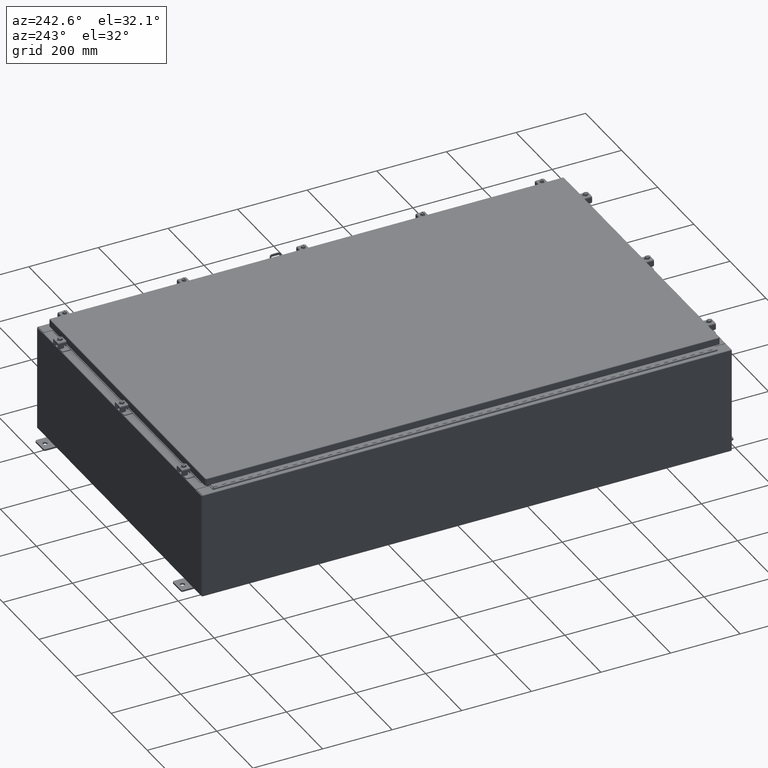
[diagram: clean part render]
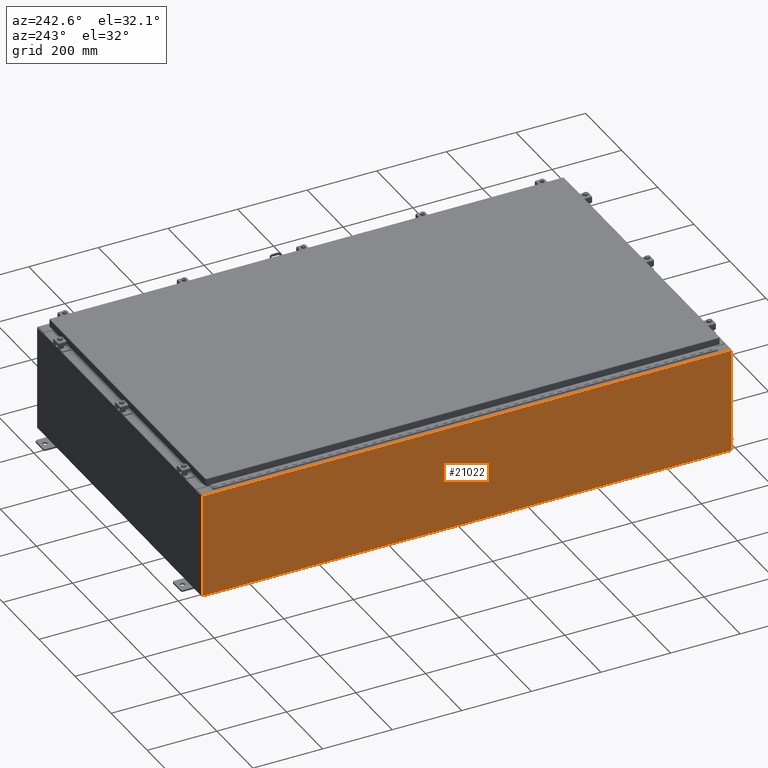
[diagram: same view with one face highlighted and labeled with its STEP entity id]
A machine part, auxiliary view. The second image highlights one B-rep face of the part: STEP entity #21022.
In plain terms, the highlighted planar face has unit normal (1, 0, 0).
Its self-contained STEP definition (entity closure, byte-faithful):
#1624 = CARTESIAN_POINT ( 'NONE',  ( -18.00000000000000400, 29.92529999999998900, 0.01299999999999984700 ) ) ;
#3092 = DIRECTION ( 'NONE',  ( 3.482016343714355100E-015, 0.0000000000000000000, -1.000000000000000000 ) ) ;
#4562 = LINE ( 'NONE', #5060, #54707 ) ;
#4657 = EDGE_CURVE ( 'NONE', #7487, #45603, #29244, .T. ) ;
#5060 = CARTESIAN_POINT ( 'NONE',  ( -18.00000000000004300, -29.92530000000001800, 11.83760000000000200 ) ) ;
#7487 = VERTEX_POINT ( 'NONE', #40335 ) ;
#8905 = LINE ( 'NONE', #51017, #33151 ) ;
#12677 = CARTESIAN_POINT ( 'NONE',  ( -18.00000000000000400, 0.0000000000000000000, -6.293710784286997500E-014 ) ) ;
#13875 = ORIENTED_EDGE ( 'NONE', *, *, #33239, .T. ) ;
#16303 = DIRECTION ( 'NONE',  ( -0.0000000000000000000, 1.000000000000000000, -0.0000000000000000000 ) ) ;
#17263 = DIRECTION ( 'NONE',  ( -3.482016343714355500E-015, 0.0000000000000000000, 1.000000000000000000 ) ) ;
#19084 = AXIS2_PLACEMENT_3D ( 'NONE', #12677, #32161, #3092 ) ;
#21022 = ADVANCED_FACE ( 'NONE', ( #28471 ), #61328, .F. ) ;
#27726 = VECTOR ( 'NONE', #57966, 39.37007874015748100 ) ;
#28471 = FACE_OUTER_BOUND ( 'NONE', #53949, .T. ) ;
#29244 = LINE ( 'NONE', #58112, #27726 ) ;
#29316 = VERTEX_POINT ( 'NONE', #56404 ) ;
#29675 = ORIENTED_EDGE ( 'NONE', *, *, #40280, .F. ) ;
#32161 = DIRECTION ( 'NONE',  ( 1.000000000000000000, 0.0000000000000000000, 3.482016343714355100E-015 ) ) ;
#32706 = ORIENTED_EDGE ( 'NONE', *, *, #4657, .T. ) ;
#33151 = VECTOR ( 'NONE', #17263, 39.37007874015748100 ) ;
#33239 = EDGE_CURVE ( 'NONE', #29316, #61971, #8905, .T. ) ;
#37384 = VECTOR ( 'NONE', #16303, 39.37007874015748100 ) ;
#38896 = LINE ( 'NONE', #1624, #37384 ) ;
#38957 = DIRECTION ( 'NONE',  ( 0.0000000000000000000, 1.000000000000000000, 0.0000000000000000000 ) ) ;
#40280 = EDGE_CURVE ( 'NONE', #29316, #45603, #38896, .T. ) ;
#40335 = CARTESIAN_POINT ( 'NONE',  ( -18.00000000000004300, 29.92529999999998900, 11.83760000000000200 ) ) ;
#45603 = VERTEX_POINT ( 'NONE', #50241 ) ;
#50145 = ORIENTED_EDGE ( 'NONE', *, *, #57476, .T. ) ;
#50241 = CARTESIAN_POINT ( 'NONE',  ( -18.00000000000000400, 29.92529999999998600, 0.01299999999999984700 ) ) ;
#51017 = CARTESIAN_POINT ( 'NONE',  ( -18.00000000000000400, -29.92530000000001100, -6.293710784286997500E-014 ) ) ;
#53949 = EDGE_LOOP ( 'NONE', ( #50145, #32706, #29675, #13875 ) ) ;
#54707 = VECTOR ( 'NONE', #38957, 39.37007874015748100 ) ;
#56404 = CARTESIAN_POINT ( 'NONE',  ( -18.00000000000000400, -29.92530000000001100, 0.01299999999999984700 ) ) ;
#57476 = EDGE_CURVE ( 'NONE', #61971, #7487, #4562, .T. ) ;
#57966 = DIRECTION ( 'NONE',  ( 3.482016343714355500E-015, 0.0000000000000000000, -1.000000000000000000 ) ) ;
#58112 = CARTESIAN_POINT ( 'NONE',  ( -18.00000000000000400, 29.92529999999998900, -6.293710784286997500E-014 ) ) ;
#60292 = CARTESIAN_POINT ( 'NONE',  ( -18.00000000000004300, -29.92530000000001100, 11.83760000000000200 ) ) ;
#61328 = PLANE ( 'NONE',  #19084 ) ;
#61971 = VERTEX_POINT ( 'NONE', #60292 ) ;